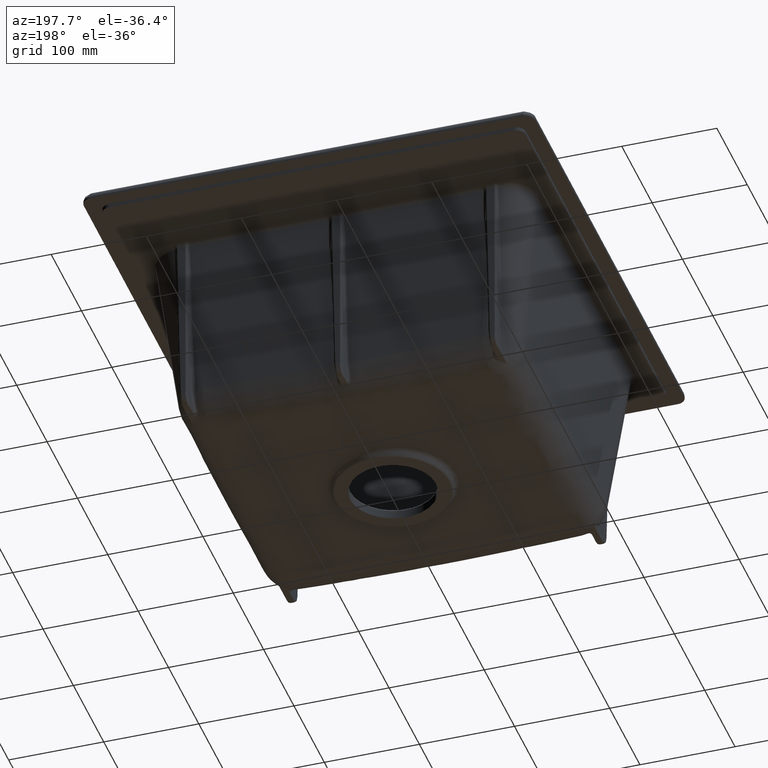
[diagram: clean part render]
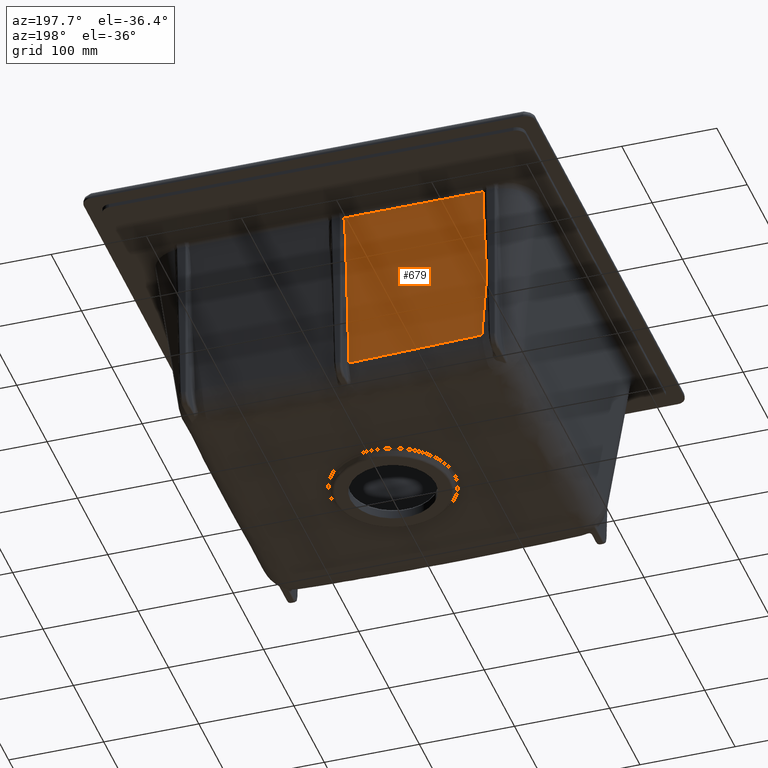
[diagram: same view with one face highlighted and labeled with its STEP entity id]
A machine part, auxiliary view. The second image highlights one B-rep face of the part: STEP entity #679.
In plain terms, the highlighted planar face has unit normal (0, 0.9936, -0.1132).
Its self-contained STEP definition (entity closure, byte-faithful):
#296=FACE_OUTER_BOUND('',#1023,.T.);
#522=B_SPLINE_CURVE_WITH_KNOTS('',3,(#7059,#7060,#7061,#7062),
 .UNSPECIFIED.,.F.,.F.,(4,4),(0.,1.),.UNSPECIFIED.);
#523=B_SPLINE_CURVE_WITH_KNOTS('',3,(#7066,#7067,#7068,#7069),
 .UNSPECIFIED.,.F.,.F.,(4,4),(0.,1.),.UNSPECIFIED.);
#524=B_SPLINE_CURVE_WITH_KNOTS('',3,(#7075,#7076,#7077,#7078,#7079,#7080,
#7081,#7082,#7083,#7084,#7085,#7086,#7087,#7088),.UNSPECIFIED.,.F.,.F.,
(4,1,1,1,1,1,1,2,2,4),(0.,0.250000000000001,0.375000000000001,0.437500000000001,
0.468750000000001,0.484375000000001,0.492187500000001,0.496093750000001,
0.500000000000001,1.),.UNSPECIFIED.);
#525=B_SPLINE_CURVE_WITH_KNOTS('',3,(#7090,#7091,#7092,#7093),
 .UNSPECIFIED.,.F.,.F.,(4,4),(0.,1.),.UNSPECIFIED.);
#679=ADVANCED_FACE('',(#296),#865,.T.);
#865=PLANE('',#3634);
#915=ELLIPSE('',#3632,63.7309636001527,5.);
#916=ELLIPSE('',#3633,63.7309636001522,5.);
#1023=EDGE_LOOP('',(#1672,#1673,#1674,#1675,#1676,#1677,#1678,#1679,#1680));
#1672=ORIENTED_EDGE('',*,*,#2918,.T.);
#1673=ORIENTED_EDGE('',*,*,#2919,.T.);
#1674=ORIENTED_EDGE('',*,*,#2920,.T.);
#1675=ORIENTED_EDGE('',*,*,#2921,.T.);
#1676=ORIENTED_EDGE('',*,*,#2922,.T.);
#1677=ORIENTED_EDGE('',*,*,#2923,.T.);
#1678=ORIENTED_EDGE('',*,*,#2924,.T.);
#1679=ORIENTED_EDGE('',*,*,#2925,.T.);
#1680=ORIENTED_EDGE('',*,*,#2926,.T.);
#2573=VERTEX_POINT('',#7057);
#2574=VERTEX_POINT('',#7058);
#2575=VERTEX_POINT('',#7063);
#2576=VERTEX_POINT('',#7065);
#2577=VERTEX_POINT('',#7070);
#2578=VERTEX_POINT('',#7072);
#2579=VERTEX_POINT('',#7074);
#2580=VERTEX_POINT('',#7089);
#2581=VERTEX_POINT('',#7094);
#2918=EDGE_CURVE('',#2573,#2574,#915,.T.);
#2919=EDGE_CURVE('',#2574,#2575,#522,.T.);
#2920=EDGE_CURVE('',#2575,#2576,#3307,.T.);
#2921=EDGE_CURVE('',#2576,#2577,#523,.T.);
#2922=EDGE_CURVE('',#2577,#2578,#916,.T.);
#2923=EDGE_CURVE('',#2578,#2579,#3308,.T.);
#2924=EDGE_CURVE('',#2579,#2580,#524,.T.);
#2925=EDGE_CURVE('',#2580,#2581,#525,.T.);
#2926=EDGE_CURVE('',#2581,#2573,#3309,.T.);
#3307=LINE('',#7064,#3442);
#3308=LINE('',#7073,#3443);
#3309=LINE('',#7095,#3444);
#3442=VECTOR('',#4155,1.);
#3443=VECTOR('',#4158,1.);
#3444=VECTOR('',#4159,1.);
#3632=AXIS2_PLACEMENT_3D('',#7056,#4153,#4154);
#3633=AXIS2_PLACEMENT_3D('',#7071,#4156,#4157);
#3634=AXIS2_PLACEMENT_3D('',#7096,#4160,#4161);
#4153=DIRECTION('',(-2.16840434497101E-19,-0.993571855676588,0.113203213767907));
#4154=DIRECTION('',(0.0104966064318222,0.11319697730202,0.993517118917989));
#4155=DIRECTION('',(1.,0.,0.));
#4156=DIRECTION('',(0.,-0.993571855676588,0.113203213767907));
#4157=DIRECTION('',(0.0104966064318227,-0.11319697730202,-0.993517118917989));
#4158=DIRECTION('',(0.0104033307584614,-0.113197087650371,-0.993518087433039));
#4159=DIRECTION('',(0.010403330758461,0.113197087650371,0.993518087433039));
#4160=DIRECTION('',(0.,0.993571855676588,-0.113203213767907));
#4161=DIRECTION('',(0.,-0.113203213767907,-0.993571855676588));
#7056=CARTESIAN_POINT('',(-158.946838485318,182.582805327302,-56.3229947893766));
#7057=CARTESIAN_POINT('',(-153.946322099193,182.585441521784,-56.2998572073613));
#7058=CARTESIAN_POINT('',(-154.534660619519,186.880568763433,-18.6020092239801));
#7059=CARTESIAN_POINT('',(-154.534660619519,186.880568763433,-18.6020092239801));
#7060=CARTESIAN_POINT('',(-154.53735018921,186.886942909656,-18.546064060581));
#7061=CARTESIAN_POINT('',(-154.537129961122,186.89334168362,-18.489902742282));
#7062=CARTESIAN_POINT('',(-154.533933099708,186.89971282738,-18.4339839311605));
#7063=CARTESIAN_POINT('',(-154.533933099708,186.89971282738,-18.4339839311605));
#7064=CARTESIAN_POINT('',(-7.71667272655874,186.89971282738,-18.4339839311605));
#7065=CARTESIAN_POINT('',(-7.96606690029151,186.89971282738,-18.4339839311605));
#7066=CARTESIAN_POINT('',(-7.96606690029151,186.89971282738,-18.4339839311605));
#7067=CARTESIAN_POINT('',(-7.96287003887781,186.89334168362,-18.489902742282));
#7068=CARTESIAN_POINT('',(-7.96264981078956,186.886942909656,-18.546064060581));
#7069=CARTESIAN_POINT('',(-7.96533938048086,186.880568763433,-18.6020092239801));
#7070=CARTESIAN_POINT('',(-7.96533938048086,186.880568763433,-18.6020092239801));
#7071=CARTESIAN_POINT('',(-3.5531615146822,182.582805327302,-56.3229947893775));
#7072=CARTESIAN_POINT('',(-8.55367790080724,182.585441521783,-56.2998572073623));
#7073=CARTESIAN_POINT('',(-7.20345861260968,167.89390717938,-185.245799230226));
#7074=CARTESIAN_POINT('',(-7.20384953262496,167.898185184008,-185.20825166549));
#7075=CARTESIAN_POINT('',(-7.20384906940227,167.89820460781,-185.20808118497));
#7076=CARTESIAN_POINT('',(-17.8733075139457,167.901473780953,-185.179388020543));
#7077=CARTESIAN_POINT('',(-34.5635315745436,167.918404026206,-185.030793165029));
#7078=CARTESIAN_POINT('',(-55.2360233343606,167.959202328695,-184.672711059735));
#7079=CARTESIAN_POINT('',(-65.872410136549,167.984863067362,-184.447489646956));
#7080=CARTESIAN_POINT('',(-71.2656387682131,167.999008833552,-184.323333850533));
#7081=CARTESIAN_POINT('',(-73.9810118916877,168.006410565861,-184.258369679814));
#7082=CARTESIAN_POINT('',(-75.3433881553356,168.010193644318,-184.225166026327));
#7083=CARTESIAN_POINT('',(-75.9282686330227,168.01183258058,-184.210781267377));
#7084=CARTESIAN_POINT('',(-76.3184122706194,168.012929119625,-184.20115706769));
#7085=CARTESIAN_POINT('',(-76.550357056928,168.013583286809,-184.195415516007));
#7086=CARTESIAN_POINT('',(-97.0012211264052,168.07140678468,-183.687905188611));
#7087=CARTESIAN_POINT('',(-120.427115338561,168.156087670149,-182.944670595572));
#7088=CARTESIAN_POINT('',(-146.986573523391,168.268074187385,-181.961777548305));
#7089=CARTESIAN_POINT('',(-146.986587776169,168.268030869173,-181.96215774737));
#7090=CARTESIAN_POINT('',(-146.986544214185,168.267987307189,-181.962540086002));
#7091=CARTESIAN_POINT('',(-149.51289973722,170.794342830224,-159.789002236914));
#7092=CARTESIAN_POINT('',(-152.039255260256,173.32069835326,-137.615464387827));
#7093=CARTESIAN_POINT('',(-154.565610783291,175.847053876295,-115.441926538739));
#7094=CARTESIAN_POINT('',(-154.565610783291,175.847053876295,-115.441926538739));
#7095=CARTESIAN_POINT('',(-153.550209773855,186.895480551754,-18.4711301376006));
#7096=CARTESIAN_POINT('',(-154.565610783291,167.898165760206,-185.20842214601));